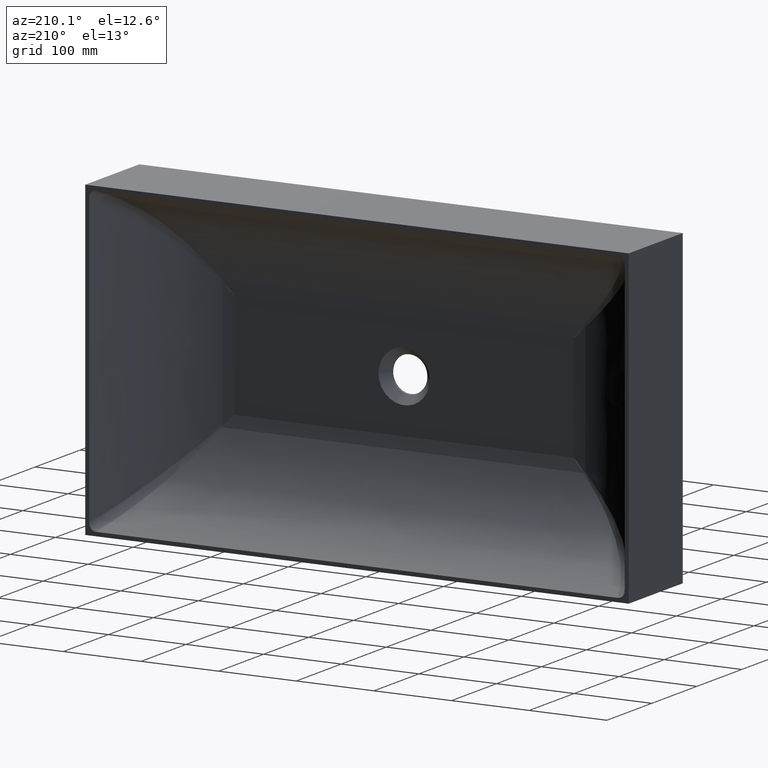
[diagram: clean part render]
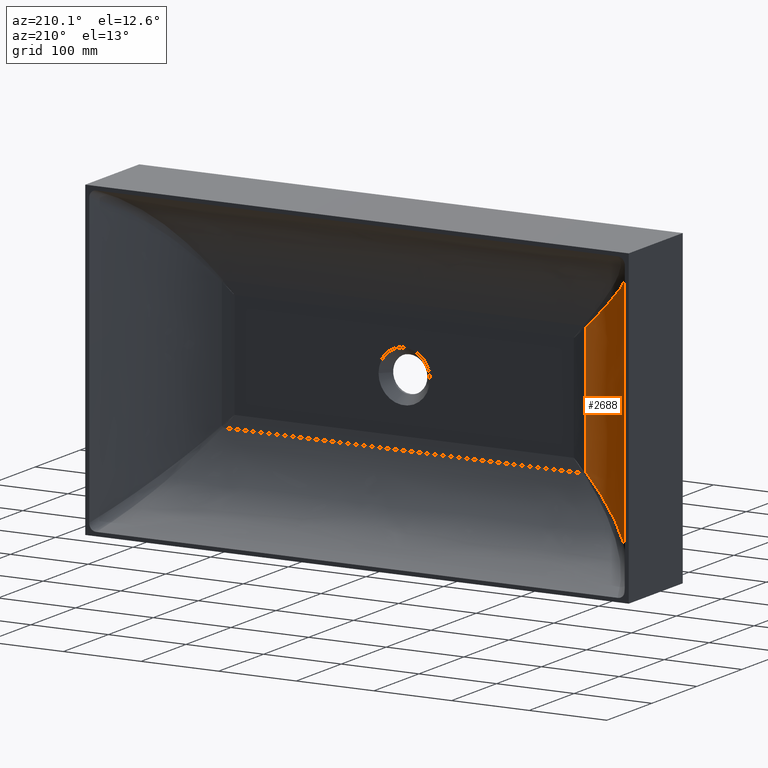
[diagram: same view with one face highlighted and labeled with its STEP entity id]
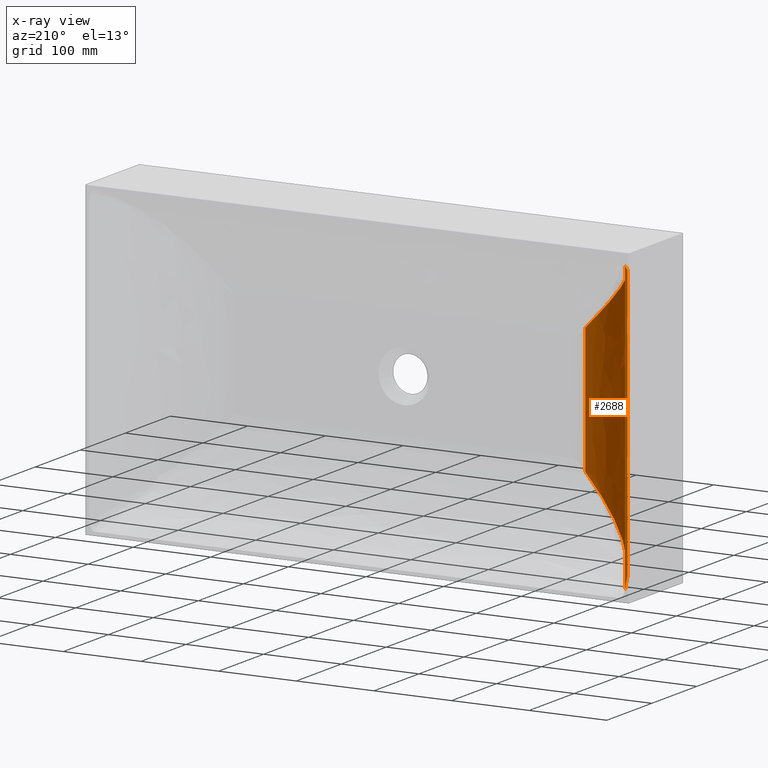
[diagram: x-ray of the same camera — body ghosted, the highlighted face saturated]
A machine part, auxiliary view. The second image highlights one B-rep face of the part: STEP entity #2688.
The next image is the same camera in x-ray: the body ghosted, the highlighted face saturated — about 0% of this face is hidden behind the body in this view.
In plain terms, the highlighted face is a freeform B-spline surface patch.
Its self-contained STEP definition (entity closure, byte-faithful):
#17 = CARTESIAN_POINT ( 'NONE',  ( -336.2542330190939300, 99.61670583266681000, -177.2573216605615000 ) ) ;
#26 = EDGE_CURVE ( 'NONE', #2046, #3282, #87, .T. ) ;
#30 = CARTESIAN_POINT ( 'NONE',  ( -326.1557468034577000, 81.30972034369419500, 167.6793879674017100 ) ) ;
#54 = CARTESIAN_POINT ( 'NONE',  ( -327.4643421529539800, 83.37918720486165100, -168.9141449638406700 ) ) ;
#73 = VERTEX_POINT ( 'NONE', #1940 ) ;
#87 = LINE ( 'NONE', #3188, #2028 ) ;
#93 = ORIENTED_EDGE ( 'NONE', *, *, #26, .T. ) ;
#109 = CARTESIAN_POINT ( 'NONE',  ( -234.0487443561922900, 16.67600941339440700, -82.09978775997406300 ) ) ;
#113 = EDGE_CURVE ( 'NONE', #73, #2046, #1867, .T. ) ;
#119 = CARTESIAN_POINT ( 'NONE',  ( -310.6128378939399700, 60.28819146629588500, 153.1049053244857700 ) ) ;
#158 = CARTESIAN_POINT ( 'NONE',  ( -275.5267552788982400, 28.98430783671531700, -125.5267552789050000 ) ) ;
#175 = ORIENTED_EDGE ( 'NONE', *, *, #671, .T. ) ;
#197 = CARTESIAN_POINT ( 'NONE',  ( -344.9999999999971000, 120.1419270601733600, 64.99999999999950300 ) ) ;
#199 = CARTESIAN_POINT ( 'NONE',  ( -334.7011716396872900, 96.47422740435880000, -175.7783704645434600 ) ) ;
#214 = CARTESIAN_POINT ( 'NONE',  ( -251.1310363210099000, 21.10945266179096100, 98.04296580833458600 ) ) ;
#223 = CARTESIAN_POINT ( 'NONE',  ( -336.2716465854287000, 99.65259044973166200, 177.2739154155130400 ) ) ;
#226 = CARTESIAN_POINT ( 'NONE',  ( -344.9671193596266200, 119.9922663913408200, -185.5790577006874900 ) ) ;
#230 = CARTESIAN_POINT ( 'NONE',  ( -344.9999999999971000, 120.1419270601733400, -195.0000000000020500 ) ) ;
#240 = CARTESIAN_POINT ( 'NONE',  ( -299.4305500177708300, 48.98466830316105800, -142.7159395353219500 ) ) ;
#300 = CARTESIAN_POINT ( 'NONE',  ( -341.8928208582540800, 112.1415907200540300, -182.6459196707440100 ) ) ;
#306 = CARTESIAN_POINT ( 'NONE',  ( -299.6845657527901500, 49.21534010806921300, 142.9512982231340500 ) ) ;
#316 = CARTESIAN_POINT ( 'NONE',  ( -302.2411082861112300, 51.60111416675472600, 145.3216080557608100 ) ) ;
#320 = CARTESIAN_POINT ( 'NONE',  ( -299.4007927802064200, 48.95771292604189300, -142.6883694973298600 ) ) ;
#321 = CARTESIAN_POINT ( 'NONE',  ( -300.4201916210101300, 49.88903333041368900, 143.6330292334601500 ) ) ;
#326 = CARTESIAN_POINT ( 'NONE',  ( -301.4008805199238200, 50.80041296461764900, 144.5421870760500800 ) ) ;
#366 = CARTESIAN_POINT ( 'NONE',  ( -325.7309741885956100, 80.63517554612444400, -167.2785130452888000 ) ) ;
#376 = CARTESIAN_POINT ( 'NONE',  ( -236.8005460887655100, 17.22280923181626400, -84.67859956190915200 ) ) ;
#385 = CARTESIAN_POINT ( 'NONE',  ( -325.7926156100739900, 80.73270646635444300, 167.3366774166426900 ) ) ;
#395 = CARTESIAN_POINT ( 'NONE',  ( -325.3278577593101200, 80.00031178905555900, -166.8982109295230900 ) ) ;
#405 = CARTESIAN_POINT ( 'NONE',  ( -325.7802853186300400, 80.71318753748725800, -167.3250424772360000 ) ) ;
#413 = CARTESIAN_POINT ( 'NONE',  ( -252.3304052754063500, 21.50380562413757300, 99.15787775816402000 ) ) ;
#431 = CARTESIAN_POINT ( 'NONE',  ( -336.2419857802383400, 99.59147642969342900, -177.2456517221667700 ) ) ;
#449 = CARTESIAN_POINT ( 'NONE',  ( -336.2690738192579300, 99.64728768510991600, 177.2714638739724900 ) ) ;
#451 = CARTESIAN_POINT ( 'NONE',  ( -332.9400923023886200, 87.79321814820718800, -60.98003076746572000 ) ) ;
#458 = CARTESIAN_POINT ( 'NONE',  ( -256.7804922183944400, 22.94135621249628100, -103.2958976313058900 ) ) ;
#498 = CARTESIAN_POINT ( 'NONE',  ( -299.5619554977103000, 49.10387299549489600, 142.8376905147307200 ) ) ;
#507 = CARTESIAN_POINT ( 'NONE',  ( -299.4568600181185600, 49.00851421813801800, 142.7403160039642700 ) ) ;
#514 = CARTESIAN_POINT ( 'NONE',  ( -336.0705514896994300, 99.23907970663958600, -177.0823102843982000 ) ) ;
#518 = CARTESIAN_POINT ( 'NONE',  ( -253.5734827314563500, 21.92327586461599900, 100.3128889348896800 ) ) ;
#520 = CARTESIAN_POINT ( 'NONE',  ( -327.9058707627128800, 84.15960522932374500, 169.3327705541570700 ) ) ;
#546 = CARTESIAN_POINT ( 'NONE',  ( -303.9233843264690900, 53.05636555252856100, -146.8785850102622100 ) ) ;
#557 = CARTESIAN_POINT ( 'NONE',  ( -251.1744716910801600, 21.12356133592611900, 98.08335129917476500 ) ) ;
#572 = CARTESIAN_POINT ( 'NONE',  ( -247.4580211360510000, 19.96930659495691500, -94.62531687762962900 ) ) ;
#585 = CARTESIAN_POINT ( 'NONE',  ( -330.0639033601209500, 87.83411000928937500, 171.3751447975335800 ) ) ;
#596 = CARTESIAN_POINT ( 'NONE',  ( -303.9207058437654000, 53.22913861264302000, 146.8803226029404200 ) ) ;
#633 = CARTESIAN_POINT ( 'NONE',  ( -321.5398163377475400, 74.30021667850697000, -163.3313852566787400 ) ) ;
#636 = CARTESIAN_POINT ( 'NONE',  ( -317.2174593908660500, 68.32849014854227200, -159.2751396367411600 ) ) ;
#671 = EDGE_CURVE ( 'NONE', #3282, #2159, #1343, .T. ) ;
#678 = VECTOR ( 'NONE', #1974, 1000.000000000000000 ) ;
#708 = CARTESIAN_POINT ( 'NONE',  ( -325.7597403372959700, 80.68067533556035200, -167.3056562231818100 ) ) ;
#737 = CARTESIAN_POINT ( 'NONE',  ( -299.4200513972802500, 48.97515628547292000, -142.7062125370862900 ) ) ;
#756 = CARTESIAN_POINT ( 'NONE',  ( -239.6020411806436500, 17.85507451907115600, -87.29846930847384100 ) ) ;
#768 = CARTESIAN_POINT ( 'NONE',  ( -315.0272452556835100, 65.54047442667197700, -157.2258850069119900 ) ) ;
#842 = CARTESIAN_POINT ( 'NONE',  ( -344.9999999999971000, 120.1419270601733400, 194.9999999999985200 ) ) ;
#868 = CARTESIAN_POINT ( 'NONE',  ( -324.8662693278702700, 79.27961610103348300, -166.4629068170165200 ) ) ;
#897 = CARTESIAN_POINT ( 'NONE',  ( -325.6734306982990000, 80.54423698252458100, -167.2242181512238200 ) ) ;
#927 = CARTESIAN_POINT ( 'NONE',  ( -316.2734256357211400, 62.79321814820719500, -55.42447521190929600 ) ) ;
#942 = FACE_OUTER_BOUND ( 'NONE', #2671, .T. ) ;
#1026 = ORIENTED_EDGE ( 'NONE', *, *, #2359, .F. ) ;
#1044 = CARTESIAN_POINT ( 'NONE',  ( -308.4055471421000900, 57.66195090109157900, -151.0443341023238900 ) ) ;
#1067 = CARTESIAN_POINT ( 'NONE',  ( -224.9999999999978700, 15.14192706017335200, -25.00000000000213200 ) ) ;
#1091 = CARTESIAN_POINT ( 'NONE',  ( -336.2682509129712100, 99.64559162051709500, 177.2706797425266200 ) ) ;
#1108 = CARTESIAN_POINT ( 'NONE',  ( -323.9403167494144200, 77.85370159944025700, -165.5901903277184600 ) ) ;
#1126 = CARTESIAN_POINT ( 'NONE',  ( -224.9999999999978700, 15.14192706017334400, 74.99999999999928900 ) ) ;
#1174 = CARTESIAN_POINT ( 'NONE',  ( -336.2845128083554900, 99.67911354539651800, 177.2861754926334200 ) ) ;
#1197 = CARTESIAN_POINT ( 'NONE',  ( -299.1695734579220100, 48.74871681810614600, -142.4741548582963700 ) ) ;
#1256 = ORIENTED_EDGE ( 'NONE', *, *, #113, .T. ) ;
#1258 = CARTESIAN_POINT ( 'NONE',  ( -317.2345258815017800, 68.16671196876227200, 159.2864467453685200 ) ) ;
#1259 = CARTESIAN_POINT ( 'NONE',  ( -320.4640703037217100, 72.77430419315459200, -162.3208496251383800 ) ) ;
#1264 = CARTESIAN_POINT ( 'NONE',  ( -275.5267552788982400, 28.98430783671531700, 41.84225175963263200 ) ) ;
#1321 = CARTESIAN_POINT ( 'NONE',  ( -275.5267552788982400, 28.98430783671532000, -41.84225175963618400 ) ) ;
#1343 = B_SPLINE_CURVE_WITH_KNOTS ( 'NONE', 3,
 ( #109, #376, #756, #2173, #2313, #572, #2974, #3219, #1622, #2778, #1504, #2239, #2854, #458, #2851, #2271, #2718, #3235, #2542, #2570, #2041, #2547, #2555, #2259, #1197, #2857, #3159, #320, #737, #240, #546, #1044, #768, #636, #1259, #633, #1923, #1108, #868, #395, #2150, #897, #366, #708, #2414, #405, #2075, #54, #3175, #1911, #3224, #2804, #199, #1877, #2084, #514, #2176, #3207, #431, #17, #3249, #1814, #3292, #3216, #2318, #300, #3212, #226 ),
 .UNSPECIFIED., .F., .F.,
 ( 4, 2, 2, 1, 1, 1, 1, 2, 2, 2, 2, 2, 1, 1, 1, 1, 1, 1, 1, 2, 2, 2, 2, 2, 1, 1, 1, 1, 1, 1, 1, 2, 2, 2, 2, 1, 1, 1, 1, 1, 1, 1, 1, 2, 2, 2, 4 ),
 ( 0.0000000000000000000, 0.06249999999997676900, 0.09374999999996523600, 0.1093749999999594500, 0.1171874999999565600, 0.1210937499999551200, 0.1230468749999544500, 0.1240234374999540500, 0.1249999999999536500, 0.2499999999998458200, 0.3749999999997380400, 0.4374999999996840300, 0.4687499999996571100, 0.4843749999996435600, 0.4921874999996368500, 0.4960937499996338500, 0.4980468749996326300, 0.4990234374996320200, 0.4995117187496314100, 0.4997558593746310200, 0.4999999999996305700, 0.6249999999995870000, 0.6874999999995653500, 0.7187499999995545800, 0.7343749999995491400, 0.7421874999995462500, 0.7460937499995447000, 0.7480468749995438100, 0.7490234374995431400, 0.7495117187495431400, 0.7497558593745431400, 0.7498779296870428100, 0.7499999999995425900, 0.8124999999995494700, 0.8437499999995528000, 0.8593749999995545800, 0.8671874999995556900, 0.8710937499995564700, 0.8730468749995570200, 0.8740234374995572400, 0.8745117187495570200, 0.8747558593745568000, 0.8748779296870568000, 0.8749389648433068000, 0.8749999999995568000, 0.9374999999997782900, 1.000000000000000000 ),
 .UNSPECIFIED. ) ;
#1440 = CARTESIAN_POINT ( 'NONE',  ( -251.7081739589237700, 21.29795544844521200, 98.57952610066344300 ) ) ;
#1443 = CARTESIAN_POINT ( 'NONE',  ( -256.0539383398933100, 22.79354889452856600, 102.6160490077785000 ) ) ;
#1464 = CARTESIAN_POINT ( 'NONE',  ( -265.1766948660836100, 26.48786958384569000, 111.0673132069587900 ) ) ;
#1470 = CARTESIAN_POINT ( 'NONE',  ( -262.3860832604531800, 25.27026242650517000, 108.4852145785408600 ) ) ;
#1495 = CARTESIAN_POINT ( 'NONE',  ( -251.2634428884422000, 21.15250831030800800, 98.16607283571679000 ) ) ;
#1504 = CARTESIAN_POINT ( 'NONE',  ( -250.9033308784451300, 21.03574330315987200, -97.83123665819162800 ) ) ;
#1515 = CARTESIAN_POINT ( 'NONE',  ( -294.5098749996058100, 44.52523090125559700, 138.1568958763398300 ) ) ;
#1520 = CARTESIAN_POINT ( 'NONE',  ( -344.9671193020229800, 119.9922664137197600, 185.5790577006040100 ) ) ;
#1528 = CARTESIAN_POINT ( 'NONE',  ( -299.4489718933010600, 49.00136340540363700, 142.7330075453691900 ) ) ;
#1549 = CARTESIAN_POINT ( 'NONE',  ( -299.9297818883175100, 49.43897183426717100, 143.1785263596898700 ) ) ;
#1550 = CARTESIAN_POINT ( 'NONE',  ( -344.9999999999971000, 120.1419270601733600, -65.00000000000127900 ) ) ;
#1562 = CARTESIAN_POINT ( 'NONE',  ( -337.9519430126895300, 103.1940243232607800, 178.8765690487486800 ) ) ;
#1564 = CARTESIAN_POINT ( 'NONE',  ( -273.4756798779189400, 30.46024756274075800, 118.7385091114961600 ) ) ;
#1566 = CARTESIAN_POINT ( 'NONE',  ( -344.9470410668062600, 119.9999999999992200, -1.776356839400250500E-012 ) ) ;
#1597 = CARTESIAN_POINT ( 'NONE',  ( -338.9961988217654600, 105.4718424068384500, 179.8739457035105700 ) ) ;
#1622 = CARTESIAN_POINT ( 'NONE',  ( -250.4482427730512800, 20.88946652443650000, -97.40803002655100300 ) ) ;
#1634 = CARTESIAN_POINT ( 'NONE',  ( -336.3025329703509700, 99.71627478036353400, 177.3033469801382300 ) ) ;
#1646 = CARTESIAN_POINT ( 'NONE',  ( -305.0392950545438000, 54.34998195063429400, 147.9192970578435500 ) ) ;
#1647 = DIRECTION ( 'NONE',  ( 0.0000000000000000000, -5.986006190890272900E-017, -1.000000000000000000 ) ) ;
#1650 = CARTESIAN_POINT ( 'NONE',  ( -308.3885870982143700, 57.82385542963821500, 151.0331251429350100 ) ) ;
#1656 = CARTESIAN_POINT ( 'NONE',  ( -234.0487446320658200, 16.67600946821168200, 82.09978747321145000 ) ) ;
#1717 = CARTESIAN_POINT ( 'NONE',  ( -337.0996318701358500, 101.3779640778577100, 178.0632661793616800 ) ) ;
#1724 = CARTESIAN_POINT ( 'NONE',  ( -245.2553609059590100, 19.20419460534068900, 92.57969157215966000 ) ) ;
#1728 = CARTESIAN_POINT ( 'NONE',  ( -336.8471151474503800, 100.8467557091458400, 177.8224332405008900 ) ) ;
#1744 = CARTESIAN_POINT ( 'NONE',  ( -339.7097325414645200, 107.0733688633127900, 180.5562000385433800 ) ) ;
#1752 = CARTESIAN_POINT ( 'NONE',  ( -325.8343419531212200, 80.79879607984406700, 167.3760518992449400 ) ) ;
#1794 = CARTESIAN_POINT ( 'NONE',  ( -341.8929746036960200, 112.1419639164063000, 182.6460674204892600 ) ) ;
#1810 = CARTESIAN_POINT ( 'NONE',  ( -343.4055783158332800, 115.8726422713945500, 184.0970268544462300 ) ) ;
#1814 = CARTESIAN_POINT ( 'NONE',  ( -336.2629812003232200, 99.63473155162107300, -177.2656575460737800 ) ) ;
#1825 = CARTESIAN_POINT ( 'NONE',  ( -252.1934219455666000, 18.98430783671531300, 34.06447398185541400 ) ) ;
#1856 = CARTESIAN_POINT ( 'NONE',  ( -224.9999999999978700, 15.14192706017334400, 24.99999999999857900 ) ) ;
#1861 = LINE ( 'NONE', #1566, #678 ) ;
#1867 = B_SPLINE_CURVE_WITH_KNOTS ( 'NONE', 3,
 ( #1520, #1810, #1794, #1744, #1597, #1562, #2963, #1717, #1728, #3237, #3242, #1988, #1634, #1174, #2418, #223, #449, #1091, #2303, #2390, #585, #2523, #520, #2545, #2535, #30, #2325, #2815, #1752, #2357, #2338, #2828, #385, #3238, #1258, #119, #1650, #1646, #596, #316, #326, #321, #1549, #306, #498, #1894, #1962, #507, #1528, #1515, #2791, #2328, #1564, #1464, #1470, #2510, #1443, #518, #413, #1440, #1938, #1495, #557, #214, #1724, #3114, #1656 ),
 .UNSPECIFIED., .F., .F.,
 ( 4, 2, 2, 2, 1, 1, 1, 1, 1, 1, 1, 2, 2, 2, 2, 1, 1, 1, 1, 1, 1, 1, 2, 2, 2, 2, 2, 1, 1, 1, 1, 1, 1, 2, 2, 2, 2, 2, 1, 1, 1, 1, 1, 2, 2, 4 ),
 ( 0.0000000000000000000, 0.06249999999988072000, 0.09374999999982121200, 0.1093749999997913100, 0.1171874999997762300, 0.1210937499997689100, 0.1230468749997651500, 0.1240234374997629400, 0.1245117187497615100, 0.1247558593747609100, 0.1248779296872606100, 0.1249389648435104600, 0.1249999999997603200, 0.1874999999996111200, 0.2187499999995368700, 0.2343749999994998200, 0.2421874999994814400, 0.2460937499994725900, 0.2480468749994680400, 0.2490234374994660100, 0.2495117187494646800, 0.2497558593744642600, 0.2498779296869640100, 0.2499999999994637900, 0.3749999999991969800, 0.4374999999990634200, 0.4687499999989963600, 0.4843749999989626600, 0.4921874999989461200, 0.4960937499989375200, 0.4980468749989333500, 0.4990234374989315800, 0.4995117187489306900, 0.4997558593739306900, 0.4999999999989307400, 0.6249999999991812100, 0.7499999999994317900, 0.8124999999995571300, 0.8437499999996194200, 0.8593749999996505000, 0.8671874999996657100, 0.8710937499996732600, 0.8730468749996770400, 0.8740234374996791500, 0.8749999999996811400, 1.000000000000000000 ),
 .UNSPECIFIED. ) ;
#1871 = B_SPLINE_SURFACE_WITH_KNOTS ( 'NONE', 3, 3, ( 
 ( #1126, #3106, #3315, #2564, #2330, #842 ),
 ( #1856, #1825, #1264, #3257, #2217, #197 ),
 ( #1067, #2294, #1321, #927, #451, #1550 ),
 ( #1872, #2376, #158, #2006, #2447, #230 ) ),
 .UNSPECIFIED., .F., .F., .F.,
 ( 4, 4 ),
 ( 4, 2, 4 ),
 ( 0.0000000000000000000, 1.000000000000000000 ),
 ( 0.0000000000000000000, 0.4779100856724731200, 1.000000000000000000 ),
 .UNSPECIFIED. ) ;
#1872 = CARTESIAN_POINT ( 'NONE',  ( -224.9999999999978700, 15.14192706017334400, -75.00000000000106600 ) ) ;
#1876 = CARTESIAN_POINT ( 'NONE',  ( -234.0487443561922900, 16.67600941339440700, -82.09978775997406300 ) ) ;
#1877 = CARTESIAN_POINT ( 'NONE',  ( -335.4831891594021200, 98.04236467924073400, -176.5228438411763800 ) ) ;
#1894 = CARTESIAN_POINT ( 'NONE',  ( -299.5006499019968400, 49.04822650136778600, 142.7808883172679400 ) ) ;
#1911 = CARTESIAN_POINT ( 'NONE',  ( -331.8164570235070400, 90.97657812411873100, -173.0369859801505200 ) ) ;
#1923 = CARTESIAN_POINT ( 'NONE',  ( -323.1420481814524200, 76.65776023410609200, -164.8386746808309900 ) ) ;
#1938 = CARTESIAN_POINT ( 'NONE',  ( -251.3968876256573700, 21.19599765325496300, 98.29014021449336300 ) ) ;
#1940 = CARTESIAN_POINT ( 'NONE',  ( -344.9671193020229800, 119.9922664137197600, 185.5790577006040100 ) ) ;
#1962 = CARTESIAN_POINT ( 'NONE',  ( -299.4743759833618800, 49.02439664662647800, 142.7565448805206100 ) ) ;
#1974 = DIRECTION ( 'NONE',  ( -0.0000000000000000000, -0.0000000000000000000, -1.000000000000000000 ) ) ;
#1988 = CARTESIAN_POINT ( 'NONE',  ( -336.3385991774756600, 99.79069782278861600, 177.3377155952455600 ) ) ;
#2006 = CARTESIAN_POINT ( 'NONE',  ( -316.2734256357211400, 62.79321814820719500, -166.2734256357279000 ) ) ;
#2028 = VECTOR ( 'NONE', #1647, 1000.000000000000000 ) ;
#2041 = CARTESIAN_POINT ( 'NONE',  ( -295.0875065950006600, 45.19168651470646800, -138.6950203164141700 ) ) ;
#2046 = VERTEX_POINT ( 'NONE', #2404 ) ;
#2075 = CARTESIAN_POINT ( 'NONE',  ( -325.7852296267387300, 80.72101384605214500, -167.3297079800053700 ) ) ;
#2084 = CARTESIAN_POINT ( 'NONE',  ( -335.8746907266019000, 98.83819959036370100, -176.8957226785832100 ) ) ;
#2150 = CARTESIAN_POINT ( 'NONE',  ( -325.5582990397380200, 80.36260376707416200, -167.1155942909713300 ) ) ;
#2159 = VERTEX_POINT ( 'NONE', #2483 ) ;
#2173 = CARTESIAN_POINT ( 'NONE',  ( -243.8657316356575700, 18.95255612759626700, -91.27778877999159600 ) ) ;
#2176 = CARTESIAN_POINT ( 'NONE',  ( -336.1685077057199500, 99.44026307863295200, -177.1756395831066600 ) ) ;
#2217 = CARTESIAN_POINT ( 'NONE',  ( -332.9400923023886200, 87.79321814820718800, 60.98003076746216800 ) ) ;
#2239 = CARTESIAN_POINT ( 'NONE',  ( -250.9943967505040000, 21.06517104645867600, -97.91591552030872900 ) ) ;
#2259 = CARTESIAN_POINT ( 'NONE',  ( -298.8995356128286900, 48.50567709671214800, -142.2239988871239700 ) ) ;
#2271 = CARTESIAN_POINT ( 'NONE',  ( -273.4770544920742200, 30.46090414016132900, -118.7397790698737900 ) ) ;
#2294 = CARTESIAN_POINT ( 'NONE',  ( -252.1934219455666000, 18.98430783671530600, -34.06447398185719100 ) ) ;
#2303 = CARTESIAN_POINT ( 'NONE',  ( -334.4748818742330600, 95.94964376635897500, 175.5618194868218300 ) ) ;
#2313 = CARTESIAN_POINT ( 'NONE',  ( -245.2971942816716400, 19.34324466141487500, -92.61247555929956800 ) ) ;
#2318 = CARTESIAN_POINT ( 'NONE',  ( -338.9818166738154400, 105.3834622234844600, -179.8594155237659000 ) ) ;
#2325 = CARTESIAN_POINT ( 'NONE',  ( -325.9719672607561200, 81.01717008854682000, 167.5059300162207300 ) ) ;
#2328 = CARTESIAN_POINT ( 'NONE',  ( -278.8862431093236900, 33.52277825382893200, 123.7307707969372600 ) ) ;
#2330 = CARTESIAN_POINT ( 'NONE',  ( -332.9400923023886200, 87.79321814820718800, 182.9400923023900400 ) ) ;
#2338 = CARTESIAN_POINT ( 'NONE',  ( -325.8016007137933300, 80.74693360468505400, 167.3451559779241500 ) ) ;
#2357 = CARTESIAN_POINT ( 'NONE',  ( -325.8114219538405800, 80.76248679919085300, 167.3544235911205600 ) ) ;
#2359 = EDGE_CURVE ( 'NONE', #73, #2159, #1861, .T. ) ;
#2376 = CARTESIAN_POINT ( 'NONE',  ( -252.1934219455666000, 18.98430783671532000, -102.1934219455698000 ) ) ;
#2390 = CARTESIAN_POINT ( 'NONE',  ( -332.6928381516306700, 92.54800325270359500, 173.8680055159366600 ) ) ;
#2404 = CARTESIAN_POINT ( 'NONE',  ( -234.0487446320658200, 16.67600946821168200, 82.09978747321145000 ) ) ;
#2414 = CARTESIAN_POINT ( 'NONE',  ( -325.7720674862457600, 80.70018178466962400, -167.3172880978068000 ) ) ;
#2418 = CARTESIAN_POINT ( 'NONE',  ( -336.2755059662177400, 99.66054549394159800, 177.2775929571619400 ) ) ;
#2447 = CARTESIAN_POINT ( 'NONE',  ( -332.9400923023886200, 87.79321814820718800, -182.9400923023936200 ) ) ;
#2483 = CARTESIAN_POINT ( 'NONE',  ( -344.9671193596266200, 119.9922663913408200, -185.5790577006874900 ) ) ;
#2510 = CARTESIAN_POINT ( 'NONE',  ( -258.1697278114309600, 23.59407969264410500, 104.5781000024531800 ) ) ;
#2523 = CARTESIAN_POINT ( 'NONE',  ( -329.1949165072990100, 86.32762199052986300, 170.5521392632233800 ) ) ;
#2535 = CARTESIAN_POINT ( 'NONE',  ( -326.5242512283474500, 81.89958775958018600, 168.0272773989064200 ) ) ;
#2542 = CARTESIAN_POINT ( 'NONE',  ( -289.3647707796569600, 40.66843241646542900, -133.4050026389664100 ) ) ;
#2545 = CARTESIAN_POINT ( 'NONE',  ( -327.2649536752326200, 83.09853020994148700, 168.7268684396118800 ) ) ;
#2547 = CARTESIAN_POINT ( 'NONE',  ( -297.2729737571272600, 47.06520762069296600, -140.7176853859232600 ) ) ;
#2555 = CARTESIAN_POINT ( 'NONE',  ( -298.3585524536742400, 48.02214004886595000, -141.7229173643481800 ) ) ;
#2564 = CARTESIAN_POINT ( 'NONE',  ( -316.2734256357211400, 62.79321814820719500, 166.2734256357243200 ) ) ;
#2570 = CARTESIAN_POINT ( 'NONE',  ( -293.1901962837197900, 43.65420902875312900, -136.9406452194199600 ) ) ;
#2671 = EDGE_LOOP ( 'NONE', ( #93, #175, #1026, #1256 ) ) ;
#2688 = ADVANCED_FACE ( 'NONE', ( #942 ), #1871, .T. ) ;
#2718 = CARTESIAN_POINT ( 'NONE',  ( -278.8861393274294200, 33.52271614156194300, -123.7306744346300700 ) ) ;
#2778 = CARTESIAN_POINT ( 'NONE',  ( -250.7667553434846500, 20.99168521978124200, -97.70423646096047300 ) ) ;
#2791 = CARTESIAN_POINT ( 'NONE',  ( -289.4026135587939700, 40.55492188519943400, 133.4392809896904700 ) ) ;
#2804 = CARTESIAN_POINT ( 'NONE',  ( -334.0329214922406300, 95.16987544829285600, -175.1427892006577200 ) ) ;
#2815 = CARTESIAN_POINT ( 'NONE',  ( -325.8801970204966700, 80.87148864886611900, 167.4193240050262500 ) ) ;
#2828 = CARTESIAN_POINT ( 'NONE',  ( -325.7950535799668000, 80.73656656922844400, 167.3389779386318400 ) ) ;
#2851 = CARTESIAN_POINT ( 'NONE',  ( -262.4089430061423500, 25.16306360300388400, -108.5089328825729900 ) ) ;
#2854 = CARTESIAN_POINT ( 'NONE',  ( -251.0409936220214900, 21.08025524021353200, -97.95924303010748700 ) ) ;
#2857 = CARTESIAN_POINT ( 'NONE',  ( -299.3044786732156100, 48.87055491466912800, -142.5991364991408500 ) ) ;
#2963 = CARTESIAN_POINT ( 'NONE',  ( -337.6081945620378000, 102.4555032381733800, 178.5484405469252100 ) ) ;
#2974 = CARTESIAN_POINT ( 'NONE',  ( -248.5418419587811600, 20.29234616224739400, -95.63443979455409800 ) ) ;
#3106 = CARTESIAN_POINT ( 'NONE',  ( -252.1934219455666000, 18.98430783671530600, 102.1934219455680200 ) ) ;
#3114 = CARTESIAN_POINT ( 'NONE',  ( -239.5524237643087400, 17.76962414057049200, 87.25748307803242200 ) ) ;
#3159 = CARTESIAN_POINT ( 'NONE',  ( -299.3719028198307200, 48.93155357650251600, -142.6616032149487700 ) ) ;
#3175 = CARTESIAN_POINT ( 'NONE',  ( -329.1875244467432800, 86.26269697066980800, -170.5441275985164700 ) ) ;
#3188 = CARTESIAN_POINT ( 'NONE',  ( -234.0487446320622700, 16.67600946821111300, -1.776356839400250500E-012 ) ) ;
#3207 = CARTESIAN_POINT ( 'NONE',  ( -336.2174920643221300, 99.54104092493682300, -177.2223129120879200 ) ) ;
#3212 = CARTESIAN_POINT ( 'NONE',  ( -343.4054828081829100, 115.8723865440092200, -184.0969350290510200 ) ) ;
#3216 = CARTESIAN_POINT ( 'NONE',  ( -337.5834744393057500, 102.3561295508702100, -178.5239248140038100 ) ) ;
#3219 = CARTESIAN_POINT ( 'NONE',  ( -249.8118784614590300, 20.68735337105432100, -96.81613208832484900 ) ) ;
#3224 = CARTESIAN_POINT ( 'NONE',  ( -332.7000973382500300, 92.61268975382338900, -173.8758912938281200 ) ) ;
#3235 = CARTESIAN_POINT ( 'NONE',  ( -286.7734176350302300, 38.79681325205312700, -131.0120578816254500 ) ) ;
#3237 = CARTESIAN_POINT ( 'NONE',  ( -336.5557178105904100, 100.2400574308678500, 177.5446420632180200 ) ) ;
#3238 = CARTESIAN_POINT ( 'NONE',  ( -321.5812754976886400, 74.06580771690239800, 163.3627904163026000 ) ) ;
#3242 = CARTESIAN_POINT ( 'NONE',  ( -336.4108349020332300, 99.93994655209793600, 177.4065551764065600 ) ) ;
#3249 = CARTESIAN_POINT ( 'NONE',  ( -336.2594819170185500, 99.62752093105389400, -177.2623231766954700 ) ) ;
#3257 = CARTESIAN_POINT ( 'NONE',  ( -316.2734256357211400, 62.79321814820719500, 55.42447521190752000 ) ) ;
#3282 = VERTEX_POINT ( 'NONE', #1876 ) ;
#3292 = CARTESIAN_POINT ( 'NONE',  ( -336.2651943837575500, 99.63929243188388800, -177.2677664329960700 ) ) ;
#3315 = CARTESIAN_POINT ( 'NONE',  ( -275.5267552788982400, 28.98430783671532000, 125.5267552789014500 ) ) ;